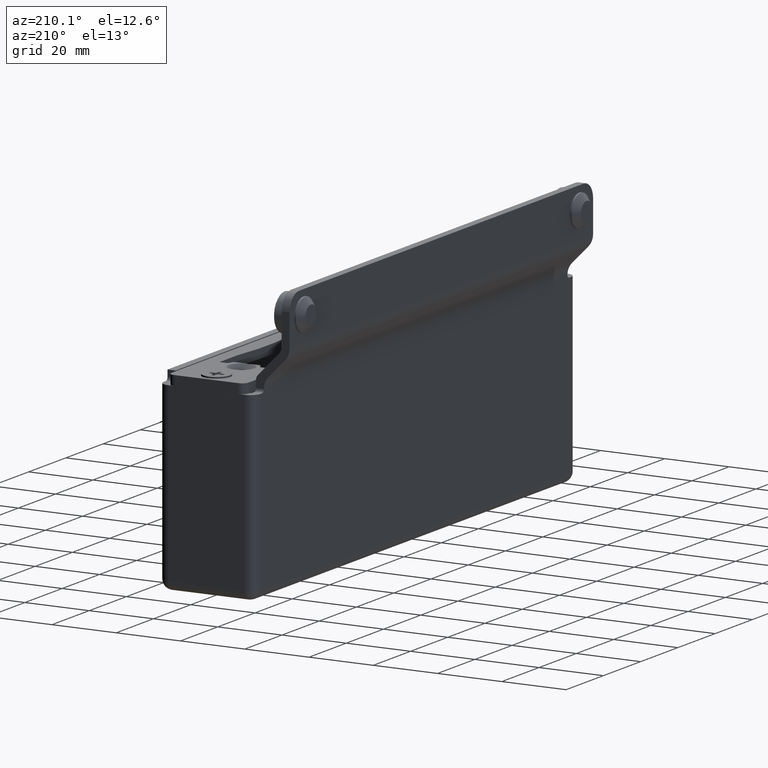
[diagram: clean part render]
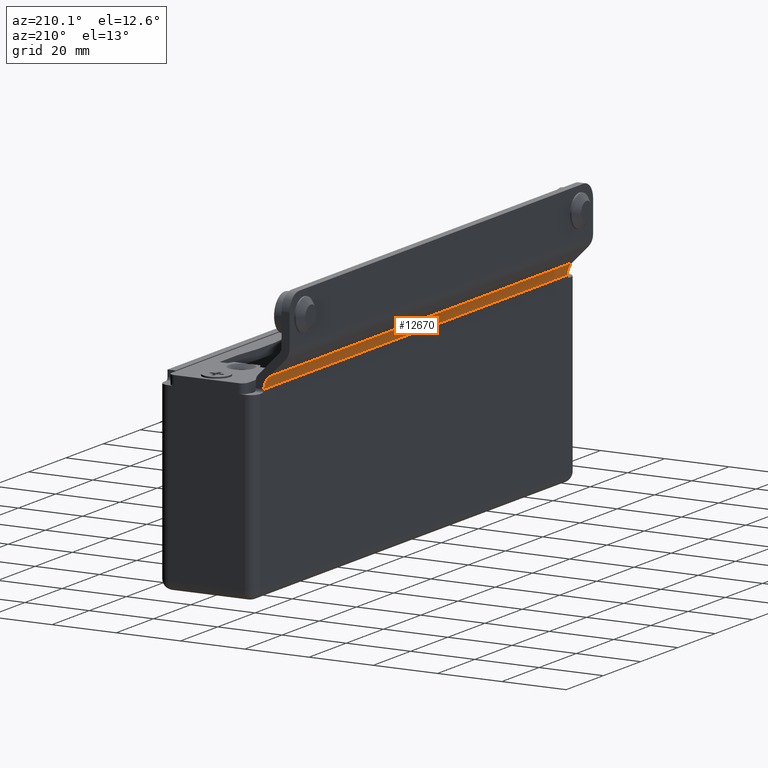
[diagram: same view with one face highlighted and labeled with its STEP entity id]
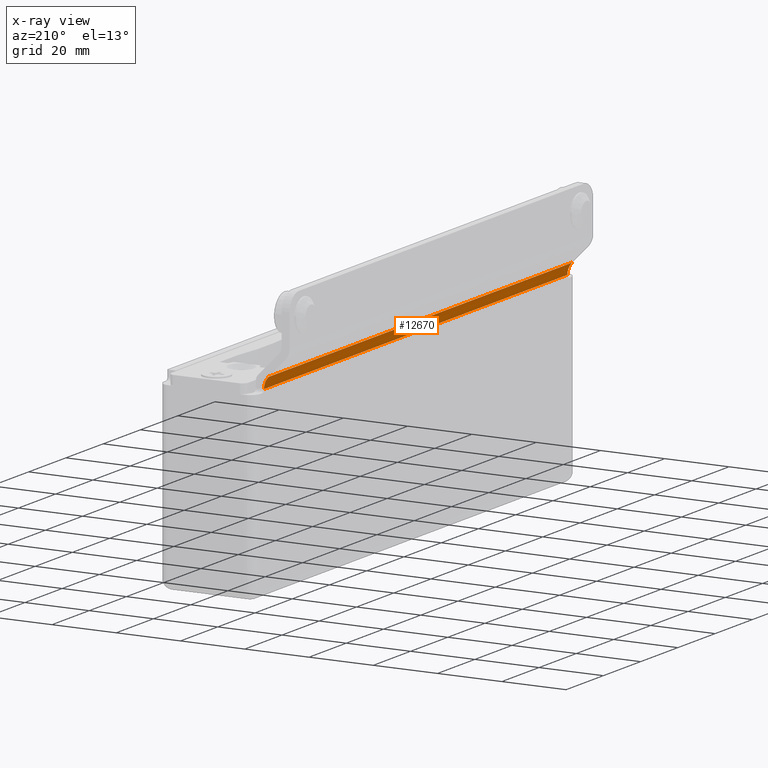
[diagram: x-ray of the same camera — body ghosted, the highlighted face saturated]
A machine part, auxiliary view. The second image highlights one B-rep face of the part: STEP entity #12670.
The next image is the same camera in x-ray: the body ghosted, the highlighted face saturated — about 0% of this face is hidden behind the body in this view.
In plain terms, the highlighted cylindrical surface (edge-blend (fillet) strip) has radius 5 mm, axis along (0, -1, 0).
Its self-contained STEP definition (entity closure, byte-faithful):
#53 = VERTEX_POINT ( 'NONE', #6805 ) ;
#376 = CARTESIAN_POINT ( 'NONE',  ( -19.99999999999999289, -81.45803989154978808, 27.92893218813453871 ) ) ;
#894 = LINE ( 'NONE', #6794, #11573 ) ;
#1363 = EDGE_CURVE ( 'NONE', #8058, #11381, #4757, .T. ) ;
#1394 = DIRECTION ( 'NONE',  ( -2.081668171172168119E-15, 0.000000000000000000, -1.000000000000000000 ) ) ;
#1684 = ORIENTED_EDGE ( 'NONE', *, *, #4350, .F. ) ;
#1749 = VERTEX_POINT ( 'NONE', #12186 ) ;
#1993 = LINE ( 'NONE', #5264, #13938 ) ;
#2263 = CARTESIAN_POINT ( 'NONE',  ( -16.46446609406723383, 81.45803989154978808, 31.46446609406725869 ) ) ;
#2576 = DIRECTION ( 'NONE',  ( 0.000000000000000000, 1.000000000000000000, -0.000000000000000000 ) ) ;
#3153 = FACE_OUTER_BOUND ( 'NONE', #12770, .T. ) ;
#3311 = DIRECTION ( 'NONE',  ( 0.000000000000000000, 0.000000000000000000, -1.000000000000000000 ) ) ;
#3553 = ORIENTED_EDGE ( 'NONE', *, *, #7141, .F. ) ;
#4179 = VERTEX_POINT ( 'NONE', #11543 ) ;
#4276 = CARTESIAN_POINT ( 'NONE',  ( -15.00050508889980705, -81.45803989154978808, 28.00000000000000711 ) ) ;
#4350 = EDGE_CURVE ( 'NONE', #11381, #14490, #13811, .T. ) ;
#4646 = DIRECTION ( 'NONE',  ( 0.000000000000000000, -1.000000000000000000, 0.000000000000000000 ) ) ;
#4757 = B_SPLINE_CURVE_WITH_KNOTS ( 'NONE', 3,
 ( #7209, #11755, #5948, #12917 ),
 .UNSPECIFIED., .F., .F.,
 ( 4, 4 ),
 ( 0.000000000000000000, 7.111457220099722041E-05 ),
 .UNSPECIFIED. ) ;
#5264 = CARTESIAN_POINT ( 'NONE',  ( -14.99999999999999467, 86.50000000000000000, 27.92893218813454226 ) ) ;
#5729 = ORIENTED_EDGE ( 'NONE', *, *, #13935, .F. ) ;
#5948 = CARTESIAN_POINT ( 'NONE',  ( -15.00016815843060058, 81.45803989154978808, 27.97629753721174595 ) ) ;
#6443 = ORIENTED_EDGE ( 'NONE', *, *, #7757, .F. ) ;
#6794 = CARTESIAN_POINT ( 'NONE',  ( -16.46446609406723383, -108.5735336174622176, 31.46446609406725869 ) ) ;
#6805 = CARTESIAN_POINT ( 'NONE',  ( -15.00050508889980705, -81.45803989154978808, 28.00000000000000711 ) ) ;
#6916 = DIRECTION ( 'NONE',  ( 0.000000000000000000, 0.000000000000000000, -1.000000000000000000 ) ) ;
#7141 = EDGE_CURVE ( 'NONE', #4179, #8058, #1993, .T. ) ;
#7209 = CARTESIAN_POINT ( 'NONE',  ( -14.99999999999999467, 81.46056840518204467, 27.92893218813453871 ) ) ;
#7414 = AXIS2_PLACEMENT_3D ( 'NONE', #10217, #14839, #3311 ) ;
#7757 = EDGE_CURVE ( 'NONE', #14490, #1749, #894, .T. ) ;
#8058 = VERTEX_POINT ( 'NONE', #10492 ) ;
#8224 = CYLINDRICAL_SURFACE ( 'NONE', #7414, 5.000000000000000888 ) ;
#8243 = CARTESIAN_POINT ( 'NONE',  ( -19.99999999999999289, 81.45803989154978808, 27.92893218813453871 ) ) ;
#8577 = AXIS2_PLACEMENT_3D ( 'NONE', #376, #2576, #1394 ) ;
#8931 = CARTESIAN_POINT ( 'NONE',  ( -14.99999999999999289, -81.45888375283603011, 27.95257710747978308 ) ) ;
#10217 = CARTESIAN_POINT ( 'NONE',  ( -19.99999999999999289, -108.5735336174622176, 27.92893218813453871 ) ) ;
#10492 = CARTESIAN_POINT ( 'NONE',  ( -14.99999999999999467, 81.46056840518204467, 27.92893218813453871 ) ) ;
#10781 = ORIENTED_EDGE ( 'NONE', *, *, #1363, .F. ) ;
#11381 = VERTEX_POINT ( 'NONE', #11816 ) ;
#11501 = B_SPLINE_CURVE_WITH_KNOTS ( 'NONE', 3,
 ( #4276, #13477, #8931, #13527 ),
 .UNSPECIFIED., .F., .F.,
 ( 4, 4 ),
 ( 0.000000000000000000, 7.111457220099723397E-05 ),
 .UNSPECIFIED. ) ;
#11543 = CARTESIAN_POINT ( 'NONE',  ( -14.99999999999999467, -81.46056840518204467, 27.92893218813453871 ) ) ;
#11573 = VECTOR ( 'NONE', #13568, 1000.000000000000000 ) ;
#11755 = CARTESIAN_POINT ( 'NONE',  ( -14.99999999999999467, 81.45888375283603011, 27.95257710747978308 ) ) ;
#11816 = CARTESIAN_POINT ( 'NONE',  ( -15.00050508889980705, 81.45803989154978808, 28.00000000000000711 ) ) ;
#12186 = CARTESIAN_POINT ( 'NONE',  ( -16.46446609406723383, -81.45803989154978808, 31.46446609406725869 ) ) ;
#12301 = DIRECTION ( 'NONE',  ( -0.000000000000000000, 1.000000000000000000, -0.000000000000000000 ) ) ;
#12665 = AXIS2_PLACEMENT_3D ( 'NONE', #8243, #4646, #6916 ) ;
#12670 = ADVANCED_FACE ( 'NONE', ( #3153 ), #8224, .F. ) ;
#12770 = EDGE_LOOP ( 'NONE', ( #10781, #3553, #5729, #14824, #6443, #1684 ) ) ;
#12917 = CARTESIAN_POINT ( 'NONE',  ( -15.00050508889980705, 81.45803989154978808, 28.00000000000000711 ) ) ;
#13477 = CARTESIAN_POINT ( 'NONE',  ( -15.00016815843060058, -81.45803989154978808, 27.97629753721174595 ) ) ;
#13527 = CARTESIAN_POINT ( 'NONE',  ( -14.99999999999999467, -81.46056840518204467, 27.92893218813453871 ) ) ;
#13568 = DIRECTION ( 'NONE',  ( 0.000000000000000000, -1.000000000000000000, 0.000000000000000000 ) ) ;
#13811 = CIRCLE ( 'NONE', #12665, 5.000000000000000888 ) ;
#13935 = EDGE_CURVE ( 'NONE', #53, #4179, #11501, .T. ) ;
#13938 = VECTOR ( 'NONE', #12301, 1000.000000000000000 ) ;
#14490 = VERTEX_POINT ( 'NONE', #2263 ) ;
#14629 = EDGE_CURVE ( 'NONE', #1749, #53, #14644, .T. ) ;
#14644 = CIRCLE ( 'NONE', #8577, 5.000000000000000888 ) ;
#14824 = ORIENTED_EDGE ( 'NONE', *, *, #14629, .F. ) ;
#14839 = DIRECTION ( 'NONE',  ( 0.000000000000000000, -1.000000000000000000, 0.000000000000000000 ) ) ;